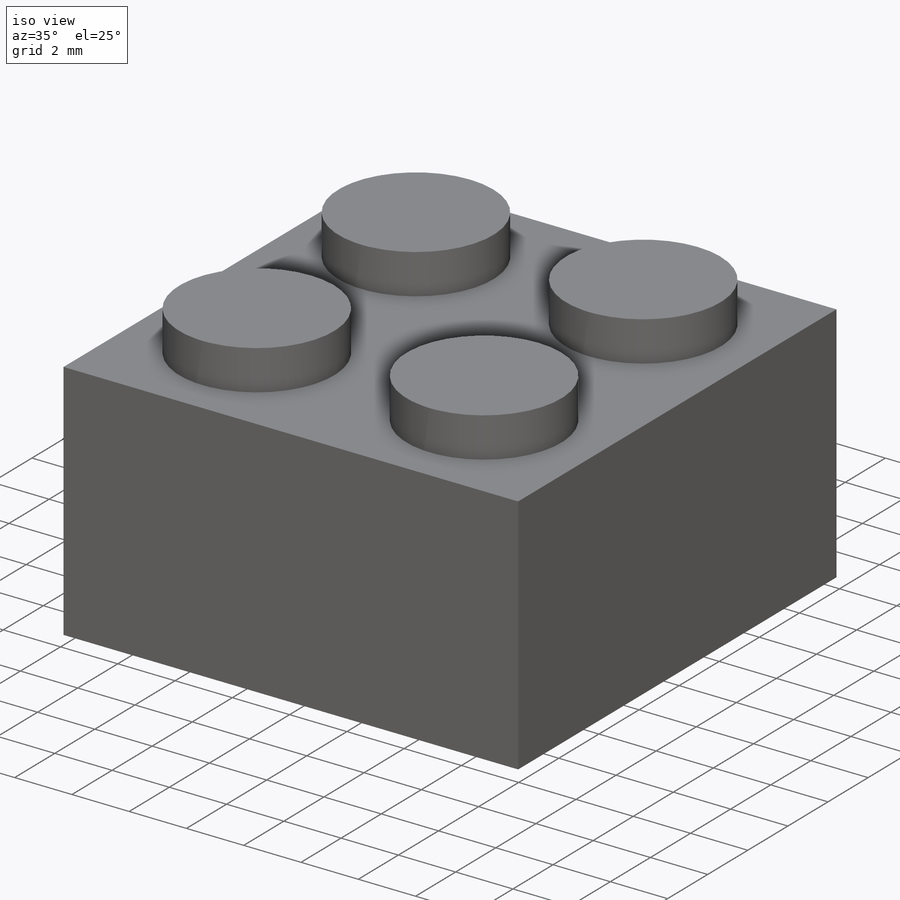
[diagram: iso view]
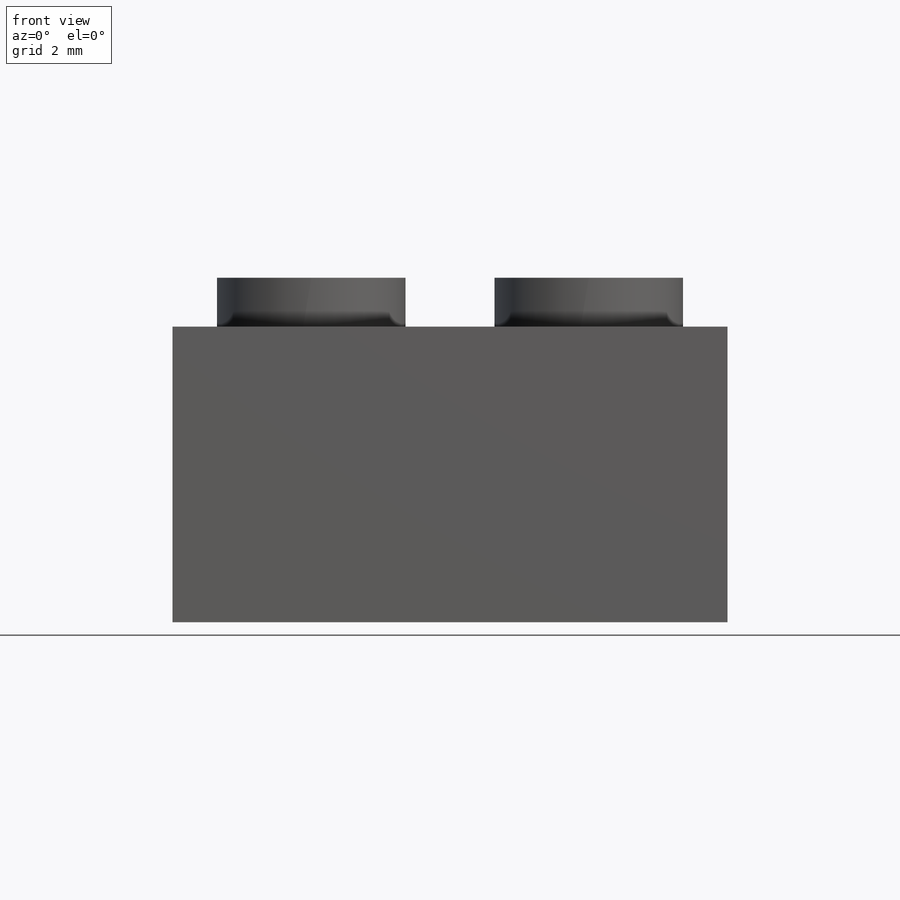
[diagram: front view]
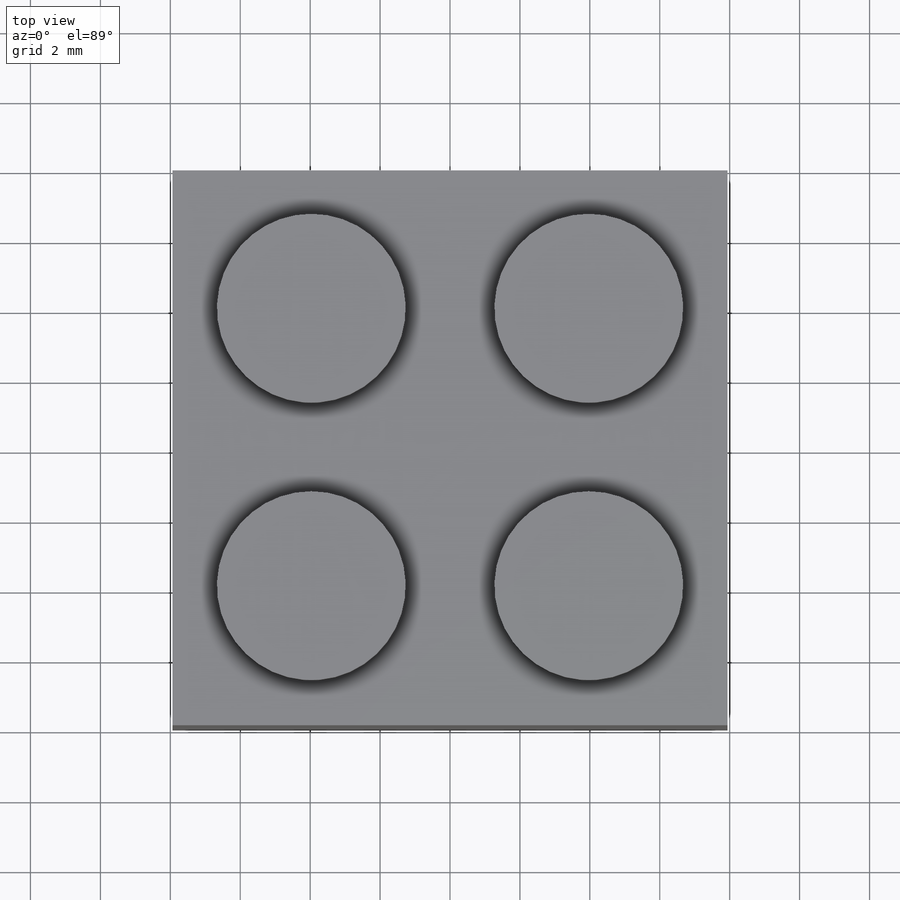
[diagram: top view]
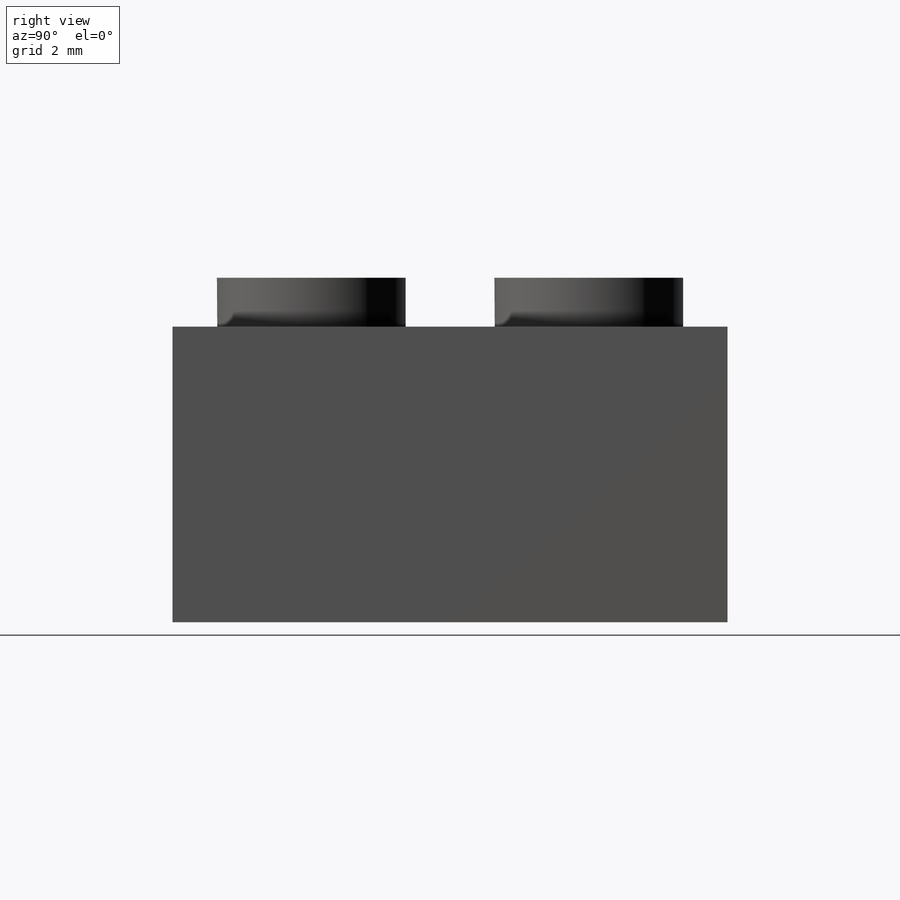
[diagram: right view]
SOLIDWORKS PART (.sldprt)
format: sldprt  version: not decoded by parser v0  size: 200,192 bytes
history: native  units: mm
features: sketch x3, extrude x2, material x1, cut_extrude x1, pattern_linear x1 (+11 scaffold rows collapsed)
feature tree (19):
  scaffold x11  (default folders/planes/origin — collapsed)
  material  "Material <not specified>"
  sketch  "Sketch1"  dims[D1=15.875mm]
  extrude  "Boss-Extrude1"  Depth=8.4582mm
  sketch  "Sketch2"  dims[D2=6.35mm D3=4.826mm D1=1.27mm]
  cut_extrude  "Cut-Extrude1"  Depth=1.27mm
  sketch  "Sketch3"  dims[D1=5.3975mm D2=~3.96875mm D3=~3.96875mm]
  extrude  "Boss-Extrude2"  Depth=1.397mm
  pattern_linear  "LPattern1"  Count1=2 Count2=2 Spacing1=7.9375mm Spacing2=7.9375mm
decode coverage: 7 of 7 modeling features carry decoded parameters
note: ~ marks probable driven/reference dimensions
note: suppression state not decoded; provenance and decode notes live in map.json
